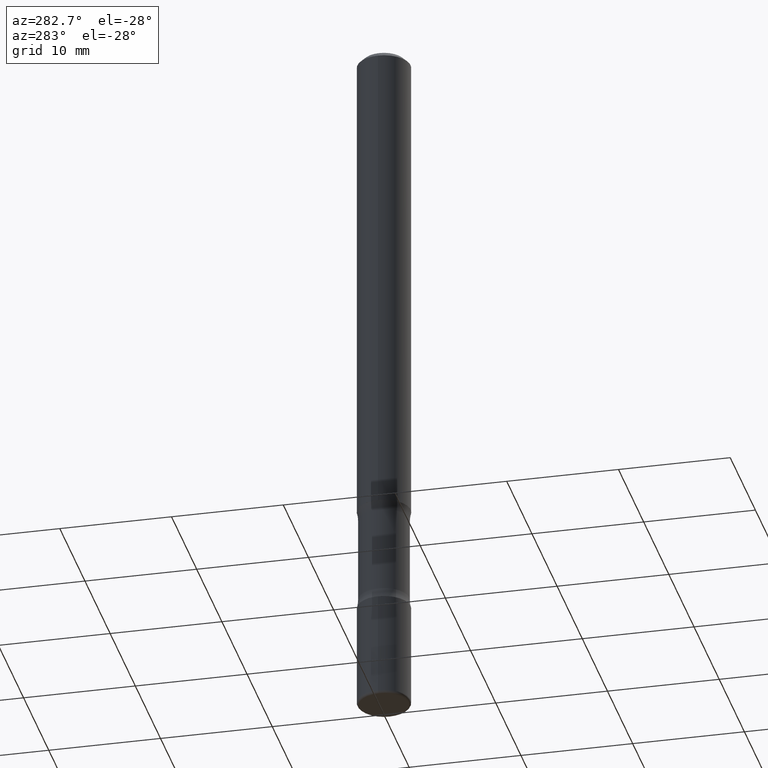
[diagram: clean part render]
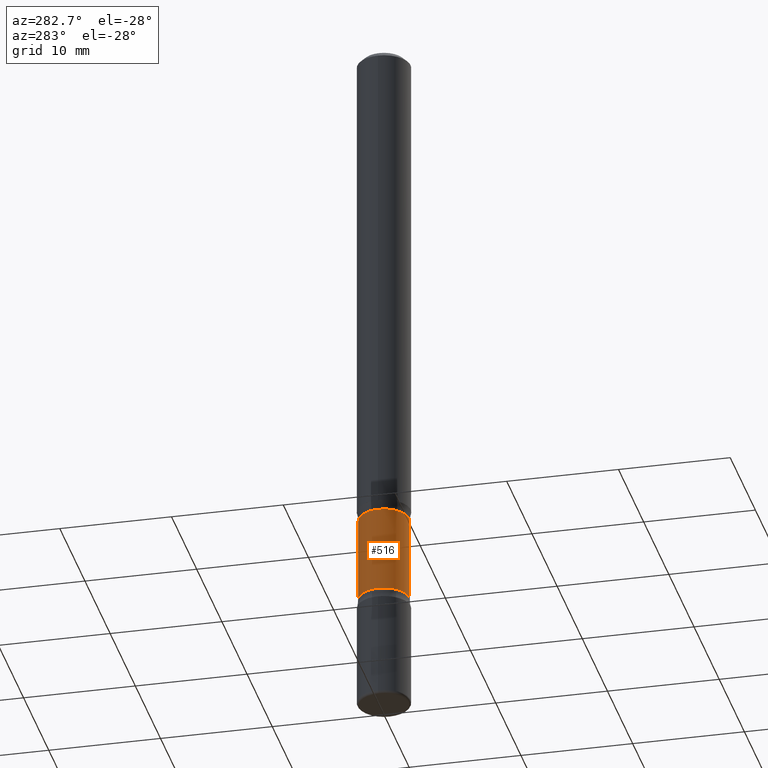
[diagram: same view with one face highlighted and labeled with its STEP entity id]
A machine part, auxiliary view. The second image highlights one B-rep face of the part: STEP entity #516.
In plain terms, the highlighted cylindrical surface (edge-blend (fillet) strip) has radius 2.2622 mm, axis along (0, -0, -1).
Its self-contained STEP definition (entity closure, byte-faithful):
#2 = CARTESIAN_POINT ( 'NONE',  ( 5.110032292609207884E-29, -7.306245973522905960E-15, -2.091089789977795821 ) ) ;
#29 = FACE_OUTER_BOUND ( 'NONE', #350, .T. ) ;
#46 = DIRECTION ( 'NONE',  ( 6.982962677686265133E-15, 1.000000000000000000, -3.067338098149350666E-15 ) ) ;
#47 = CARTESIAN_POINT ( 'NONE',  ( -6.110131029264649859E-16, -0.08906250000000860700, -2.499999999999999556 ) ) ;
#71 = CARTESIAN_POINT ( 'NONE',  ( 6.154174857873591467E-29, -8.670700971497045879E-15, -2.500000000000000000 ) ) ;
#76 = DIRECTION ( 'NONE',  ( 2.553476385947133355E-29, -3.336808337214295667E-15, -1.000000000000000000 ) ) ;
#78 = AXIS2_PLACEMENT_3D ( 'NONE', #2, #178, #46 ) ;
#85 = VERTEX_POINT ( 'NONE', #477 ) ;
#86 = DIRECTION ( 'NONE',  ( 2.553476385947133355E-29, -3.336808337214295667E-15, -1.000000000000000000 ) ) ;
#92 = LINE ( 'NONE', #47, #522 ) ;
#93 = VERTEX_POINT ( 'NONE', #314 ) ;
#103 = CARTESIAN_POINT ( 'NONE',  ( -6.270923951087521301E-16, -0.08906250000000723310, -2.091089789977795377 ) ) ;
#109 = CYLINDRICAL_SURFACE ( 'NONE', #493, 0.08906249999999993339 ) ;
#120 = ORIENTED_EDGE ( 'NONE', *, *, #150, .F. ) ;
#122 = CIRCLE ( 'NONE', #200, 0.08906249999999994726 ) ;
#150 = EDGE_CURVE ( 'NONE', #170, #383, #335, .T. ) ;
#156 = CARTESIAN_POINT ( 'NONE',  ( 4.325656488947447574E-29, -6.281246590105103764E-15, -1.783910210022204623 ) ) ;
#170 = VERTEX_POINT ( 'NONE', #103 ) ;
#178 = DIRECTION ( 'NONE',  ( 2.553476385947133355E-29, -3.336808337214295667E-15, -1.000000000000000000 ) ) ;
#200 = AXIS2_PLACEMENT_3D ( 'NONE', #156, #437, #489 ) ;
#207 = EDGE_CURVE ( 'NONE', #85, #93, #122, .T. ) ;
#314 = CARTESIAN_POINT ( 'NONE',  ( 6.219201134814759246E-16, 0.08906249999999366063, -1.783910210022204845 ) ) ;
#315 = CARTESIAN_POINT ( 'NONE',  ( 6.219201134814836160E-16, 0.08906249999999261979, -2.091089789977795821 ) ) ;
#335 = CIRCLE ( 'NONE', #78, 0.08906249999999993339 ) ;
#344 = CARTESIAN_POINT ( 'NONE',  ( 6.219201134814940684E-16, 0.08906249999999125977, -2.500000000000000444 ) ) ;
#350 = EDGE_LOOP ( 'NONE', ( #479, #375, #492, #120 ) ) ;
#360 = DIRECTION ( 'NONE',  ( 6.982962677686265133E-15, 1.000000000000000000, -6.134676196298701332E-15 ) ) ;
#368 = EDGE_CURVE ( 'NONE', #93, #383, #560, .T. ) ;
#375 = ORIENTED_EDGE ( 'NONE', *, *, #207, .T. ) ;
#381 = DIRECTION ( 'NONE',  ( 2.553476385947133355E-29, -3.336808337214295667E-15, -1.000000000000000000 ) ) ;
#383 = VERTEX_POINT ( 'NONE', #315 ) ;
#417 = VECTOR ( 'NONE', #86, 39.37007874015748143 ) ;
#433 = EDGE_CURVE ( 'NONE', #85, #170, #92, .T. ) ;
#437 = DIRECTION ( 'NONE',  ( 2.553476385947133355E-29, -3.336808337214295667E-15, -1.000000000000000000 ) ) ;
#477 = CARTESIAN_POINT ( 'NONE',  ( -6.270923951087611034E-16, -0.08906250000000623390, -1.783910210022204401 ) ) ;
#479 = ORIENTED_EDGE ( 'NONE', *, *, #433, .F. ) ;
#489 = DIRECTION ( 'NONE',  ( 6.982962677686265133E-15, 1.000000000000000000, -3.067338098149349877E-15 ) ) ;
#492 = ORIENTED_EDGE ( 'NONE', *, *, #368, .T. ) ;
#493 = AXIS2_PLACEMENT_3D ( 'NONE', #71, #76, #360 ) ;
#516 = ADVANCED_FACE ( 'NONE', ( #29 ), #109, .T. ) ;
#522 = VECTOR ( 'NONE', #381, 39.37007874015748143 ) ;
#560 = LINE ( 'NONE', #344, #417 ) ;